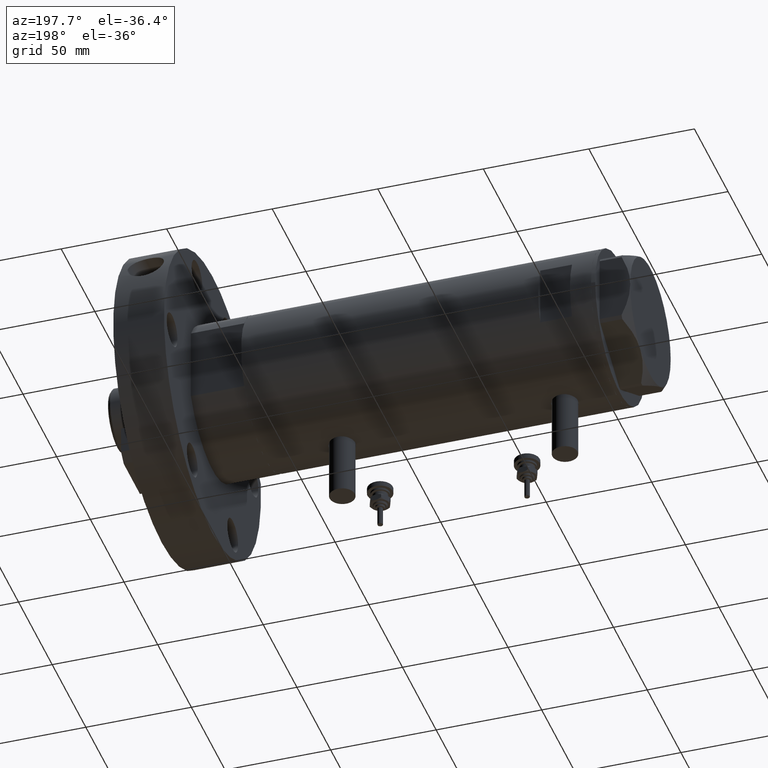
[diagram: clean part render]
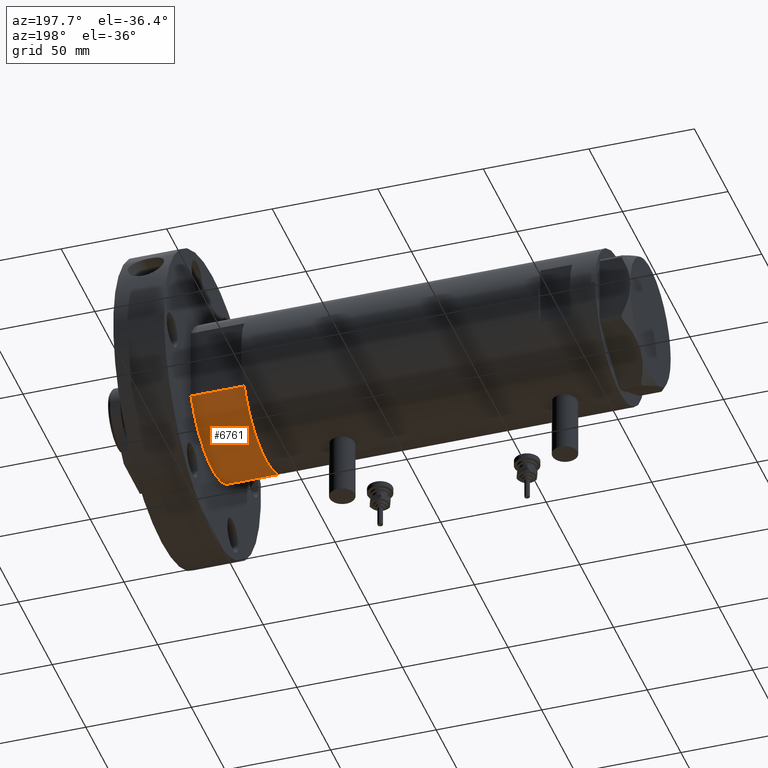
[diagram: same view with one face highlighted and labeled with its STEP entity id]
A machine part, auxiliary view. The second image highlights one B-rep face of the part: STEP entity #6761.
In plain terms, the highlighted cylindrical surface (partial cylindrical patch) has radius 36.5 mm, axis along (-1, -0, 0).
Its self-contained STEP definition (entity closure, byte-faithful):
#166 = VERTEX_POINT ( 'NONE', #7860 ) ;
#177 = EDGE_CURVE ( 'NONE', #5987, #2093, #3112, .T. ) ;
#277 = CARTESIAN_POINT ( 'NONE',  ( 17.55704986607943141, -32.00000000000000000, 0.000000000000000000 ) ) ;
#341 = EDGE_CURVE ( 'NONE', #166, #3690, #7814, .T. ) ;
#449 = ORIENTED_EDGE ( 'NONE', *, *, #7264, .F. ) ;
#487 = VECTOR ( 'NONE', #8320, 1000.000000000000000 ) ;
#827 = VECTOR ( 'NONE', #1308, 1000.000000000000000 ) ;
#952 = DIRECTION ( 'NONE',  ( 0.000000000000000000, 0.000000000000000000, 1.000000000000000000 ) ) ;
#1308 = DIRECTION ( 'NONE',  ( -0.000000000000000000, -0.000000000000000000, 1.000000000000000000 ) ) ;
#1576 = EDGE_CURVE ( 'NONE', #2093, #3690, #6039, .T. ) ;
#1761 = CARTESIAN_POINT ( 'NONE',  ( 17.55704986607943496, 32.00000000000000000, 25.19999999999999929 ) ) ;
#2093 = VERTEX_POINT ( 'NONE', #3830 ) ;
#2805 = EDGE_LOOP ( 'NONE', ( #6204, #449, #4903, #5354 ) ) ;
#3004 = CARTESIAN_POINT ( 'NONE',  ( 0.000000000000000000, 0.000000000000000000, 25.19999999999999929 ) ) ;
#3112 = CIRCLE ( 'NONE', #6064, 36.50000000000000000 ) ;
#3690 = VERTEX_POINT ( 'NONE', #1761 ) ;
#3820 = AXIS2_PLACEMENT_3D ( 'NONE', #3004, #5650, #5570 ) ;
#3830 = CARTESIAN_POINT ( 'NONE',  ( 17.55704986607943496, 32.00000000000000000, 0.000000000000000000 ) ) ;
#3839 = CARTESIAN_POINT ( 'NONE',  ( 17.55704986607943141, -32.00000000000000000, 0.000000000000000000 ) ) ;
#4133 = CARTESIAN_POINT ( 'NONE',  ( 0.000000000000000000, 0.000000000000000000, 25.19999999999999929 ) ) ;
#4509 = LINE ( 'NONE', #3839, #487 ) ;
#4597 = CARTESIAN_POINT ( 'NONE',  ( 0.000000000000000000, 0.000000000000000000, 0.000000000000000000 ) ) ;
#4903 = ORIENTED_EDGE ( 'NONE', *, *, #177, .T. ) ;
#5354 = ORIENTED_EDGE ( 'NONE', *, *, #1576, .T. ) ;
#5570 = DIRECTION ( 'NONE',  ( -1.000000000000000000, 0.000000000000000000, 0.000000000000000000 ) ) ;
#5650 = DIRECTION ( 'NONE',  ( -0.000000000000000000, -0.000000000000000000, -1.000000000000000000 ) ) ;
#5695 = FACE_OUTER_BOUND ( 'NONE', #2805, .T. ) ;
#5987 = VERTEX_POINT ( 'NONE', #277 ) ;
#6039 = LINE ( 'NONE', #7063, #827 ) ;
#6064 = AXIS2_PLACEMENT_3D ( 'NONE', #4597, #7219, #7176 ) ;
#6204 = ORIENTED_EDGE ( 'NONE', *, *, #341, .F. ) ;
#6761 = ADVANCED_FACE ( 'NONE', ( #5695 ), #8278, .T. ) ;
#6838 = DIRECTION ( 'NONE',  ( 1.000000000000000000, 0.000000000000000000, 0.000000000000000000 ) ) ;
#7063 = CARTESIAN_POINT ( 'NONE',  ( 17.55704986607943141, 32.00000000000000000, 0.000000000000000000 ) ) ;
#7176 = DIRECTION ( 'NONE',  ( 1.000000000000000000, 0.000000000000000000, 0.000000000000000000 ) ) ;
#7219 = DIRECTION ( 'NONE',  ( 0.000000000000000000, 0.000000000000000000, 1.000000000000000000 ) ) ;
#7264 = EDGE_CURVE ( 'NONE', #5987, #166, #4509, .T. ) ;
#7814 = CIRCLE ( 'NONE', #8238, 36.50000000000000000 ) ;
#7860 = CARTESIAN_POINT ( 'NONE',  ( 17.55704986607943496, -32.00000000000000000, 25.19999999999999929 ) ) ;
#8238 = AXIS2_PLACEMENT_3D ( 'NONE', #4133, #952, #6838 ) ;
#8278 = CYLINDRICAL_SURFACE ( 'NONE', #3820, 36.50000000000000000 ) ;
#8320 = DIRECTION ( 'NONE',  ( -0.000000000000000000, -0.000000000000000000, 1.000000000000000000 ) ) ;